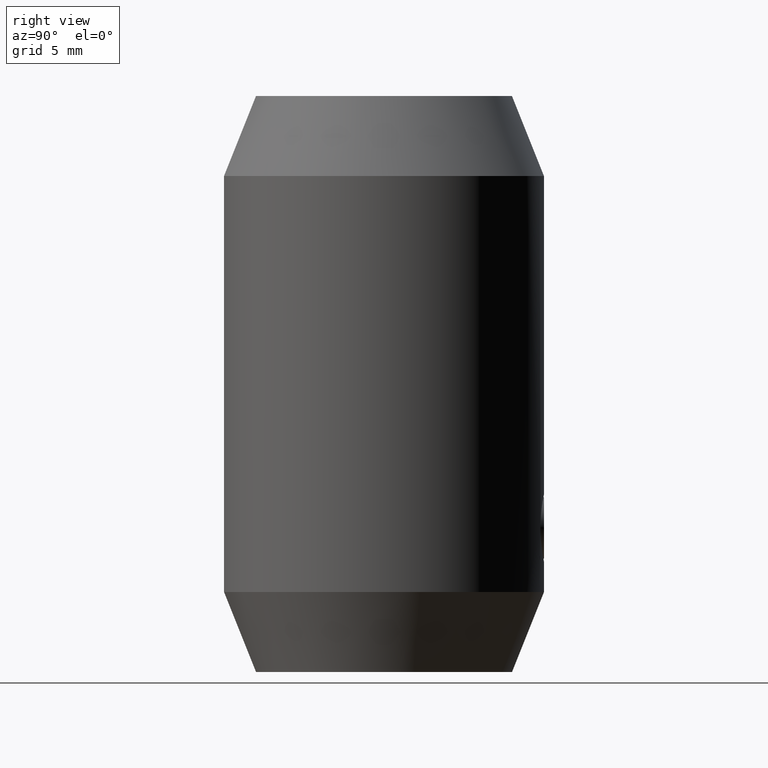
[diagram: clean part render]
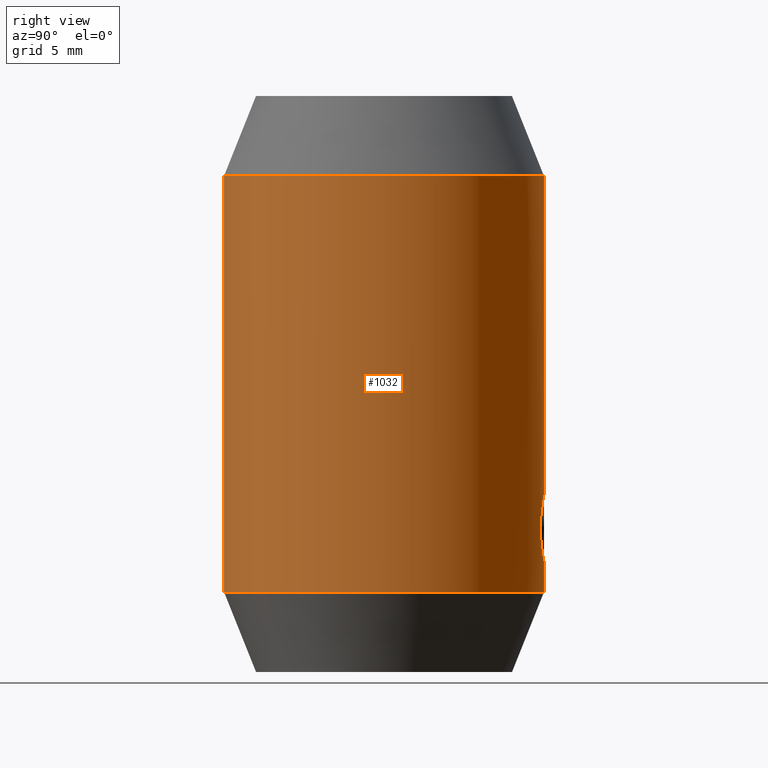
[diagram: same view with one face highlighted and labeled with its STEP entity id]
A machine part, right view. The second image highlights one B-rep face of the part: STEP entity #1032.
In plain terms, the highlighted cylindrical surface (partial cylindrical patch) has radius 10 mm, axis along (0, -0, 1).
Its self-contained STEP definition (entity closure, byte-faithful):
#25 = CARTESIAN_POINT ( 'NONE',  ( 1.886069022654248029, 9.820675200107668701, -9.933698955346818238 ) ) ;
#44 = VECTOR ( 'NONE', #3202, 1000.000000000000000 ) ;
#153 = CARTESIAN_POINT ( 'NONE',  ( 2.857019739783142212E-18, 10.00000000000000000, -6.900000000000001243 ) ) ;
#417 = DIRECTION ( 'NONE',  ( -0.000000000000000000, -2.139922160430262120E-32, 1.000000000000000000 ) ) ;
#565 = ORIENTED_EDGE ( 'NONE', *, *, #3037, .T. ) ;
#1032 = ADVANCED_FACE ( 'NONE', ( #8285 ), #10330, .T. ) ;
#1212 = VECTOR ( 'NONE', #8166, 1000.000000000000000 ) ;
#1372 = CIRCLE ( 'NONE', #3712, 10.00000000000000178 ) ;
#1441 = VERTEX_POINT ( 'NONE', #1941 ) ;
#1702 = AXIS2_PLACEMENT_3D ( 'NONE', #4312, #10938, #14352 ) ;
#1941 = CARTESIAN_POINT ( 'NONE',  ( 1.224647221750614481E-15, 10.00000000000000000, -11.09999999999999787 ) ) ;
#2036 = CARTESIAN_POINT ( 'NONE',  ( 1.887359528085516658, 9.820424885796265713, -8.069024827734512684 ) ) ;
#2293 = CARTESIAN_POINT ( 'NONE',  ( 2.099870464904528777, 9.777041681823456898, -9.278219139216016487 ) ) ;
#2780 = CARTESIAN_POINT ( 'NONE',  ( 1.224646799147353454E-15, 10.00000000000000178, -13.00000000000000178 ) ) ;
#2856 = ORIENTED_EDGE ( 'NONE', *, *, #9031, .F. ) ;
#2943 = EDGE_CURVE ( 'NONE', #8905, #8108, #9627, .T. ) ;
#3037 = EDGE_CURVE ( 'NONE', #1441, #4972, #9681, .T. ) ;
#3181 = CARTESIAN_POINT ( 'NONE',  ( 0.000000000000000000, -10.00000000000000178, -13.00000000000000178 ) ) ;
#3202 = DIRECTION ( 'NONE',  ( -0.000000000000000000, -2.139922160430262120E-32, 1.000000000000000000 ) ) ;
#3590 = EDGE_CURVE ( 'NONE', #6657, #1441, #9814, .T. ) ;
#3712 = AXIS2_PLACEMENT_3D ( 'NONE', #10391, #11525, #3734 ) ;
#3734 = DIRECTION ( 'NONE',  ( 0.000000000000000000, -1.000000000000000000, 0.000000000000000000 ) ) ;
#4274 = AXIS2_PLACEMENT_3D ( 'NONE', #13897, #6058, #4918 ) ;
#4312 = CARTESIAN_POINT ( 'NONE',  ( 0.000000000000000000, -2.781898808559340920E-31, 13.00000000000000000 ) ) ;
#4449 = CARTESIAN_POINT ( 'NONE',  ( 0.9307453044343513282, 9.957399126751534268, -10.88744288667146698 ) ) ;
#4539 = CARTESIAN_POINT ( 'NONE',  ( 1.387287519812233860, 9.903788256016399671, -10.58245622905389816 ) ) ;
#4741 = LINE ( 'NONE', #13675, #1212 ) ;
#4918 = DIRECTION ( 'NONE',  ( 0.000000000000000000, -1.000000000000000000, 0.000000000000000000 ) ) ;
#4947 = CARTESIAN_POINT ( 'NONE',  ( 1.224646799147353256E-15, 10.00000000000000000, 18.00000000000000000 ) ) ;
#4972 = VERTEX_POINT ( 'NONE', #153 ) ;
#5466 = CARTESIAN_POINT ( 'NONE',  ( 1.293047089259246496, 9.917965911646648536, -7.322954333223663070 ) ) ;
#5611 = CARTESIAN_POINT ( 'NONE',  ( 0.5473692627298688551, 9.985928670503444238, -6.967889140885696442 ) ) ;
#5635 = CARTESIAN_POINT ( 'NONE',  ( 1.224647221750614481E-15, 10.00000000000000000, -11.09999999999999787 ) ) ;
#5690 = CARTESIAN_POINT ( 'NONE',  ( 1.580960279274902902, 9.874722936770943704, -10.38899207155883531 ) ) ;
#6058 = DIRECTION ( 'NONE',  ( -0.000000000000000000, -2.139922160430262120E-32, 1.000000000000000000 ) ) ;
#6533 = CARTESIAN_POINT ( 'NONE',  ( 1.224646799147353256E-15, 10.00000000000000000, 18.00000000000000000 ) ) ;
#6583 = CARTESIAN_POINT ( 'NONE',  ( 1.670316449171411977, 9.859820038197737446, -7.719788501600800323 ) ) ;
#6623 = CARTESIAN_POINT ( 'NONE',  ( 1.822958913409086223, 9.832742701100269045, -7.948468107460126220 ) ) ;
#6657 = VERTEX_POINT ( 'NONE', #2780 ) ;
#6666 = ORIENTED_EDGE ( 'NONE', *, *, #3590, .T. ) ;
#6703 = CARTESIAN_POINT ( 'NONE',  ( 1.053408285335779349, 9.945026747411512602, -10.82187116342850075 ) ) ;
#6735 = CARTESIAN_POINT ( 'NONE',  ( 1.059534680940314111, 9.946938681563811002, -7.166363771335392485 ) ) ;
#6754 = CARTESIAN_POINT ( 'NONE',  ( 1.821420871010316578, 9.833025131130757046, -10.05409041296318229 ) ) ;
#6799 = CARTESIAN_POINT ( 'NONE',  ( 2.033100055609951440, 9.791182240394723735, -8.456549209934509648 ) ) ;
#6880 = ORIENTED_EDGE ( 'NONE', *, *, #11197, .T. ) ;
#7700 = CARTESIAN_POINT ( 'NONE',  ( 0.1391327100400020500, 10.00000000000000000, -6.900000000000001243 ) ) ;
#7826 = ORIENTED_EDGE ( 'NONE', *, *, #12356, .T. ) ;
#7860 = CARTESIAN_POINT ( 'NONE',  ( 2.045041805225629616, 9.789253035435455885, -9.551365944365478811 ) ) ;
#7901 = VECTOR ( 'NONE', #417, 1000.000000000000000 ) ;
#8108 = VERTEX_POINT ( 'NONE', #13412 ) ;
#8166 = DIRECTION ( 'NONE',  ( -0.000000000000000000, -2.139922160430262120E-32, 1.000000000000000000 ) ) ;
#8285 = FACE_OUTER_BOUND ( 'NONE', #10660, .T. ) ;
#8905 = VERTEX_POINT ( 'NONE', #10091 ) ;
#9031 = EDGE_CURVE ( 'NONE', #9285, #8905, #4741, .T. ) ;
#9285 = VERTEX_POINT ( 'NONE', #3181 ) ;
#9627 = CIRCLE ( 'NONE', #1702, 9.999999999999998224 ) ;
#9681 = B_SPLINE_CURVE_WITH_KNOTS ( 'NONE', 3,
 ( #5635, #12370, #12289, #4449, #6703, #14441, #4539, #5690, #13363, #6754, #25, #7860, #2293, #10080, #13418, #6799, #11820, #2036, #6623, #6583, #14373, #5466, #6735, #13260, #5611, #13348, #7700, #11106 ),
 .UNSPECIFIED., .F., .F.,
 ( 4, 2, 2, 2, 2, 2, 2, 2, 2, 2, 2, 2, 2, 4 ),
 ( 0.006583917366312152381, 0.007406692281731436234, 0.007818079739441079895, 0.008229467197150721822, 0.008640854654860365483, 0.009052242112570007410, 0.009875017027989298202, 0.01028640448569894186, 0.01069779194340858379, 0.01110917940111822745, 0.01152056685882786938, 0.01234334177424714629, 0.01275472923195678648, 0.01316611668966642668 ),
 .UNSPECIFIED. ) ;
#9814 = LINE ( 'NONE', #4947, #7901 ) ;
#10080 = CARTESIAN_POINT ( 'NONE',  ( 2.100064424928578699, 9.777000021249996564, -8.862359614028044064 ) ) ;
#10091 = CARTESIAN_POINT ( 'NONE',  ( 1.224646799147353059E-15, -9.999999999999998224, 13.00000000000000000 ) ) ;
#10330 = CYLINDRICAL_SURFACE ( 'NONE', #4274, 10.00000000000000000 ) ;
#10391 = CARTESIAN_POINT ( 'NONE',  ( 0.000000000000000000, 2.781898808559340920E-31, -13.00000000000000178 ) ) ;
#10660 = EDGE_LOOP ( 'NONE', ( #6880, #6666, #565, #7826, #11531, #2856 ) ) ;
#10938 = DIRECTION ( 'NONE',  ( -0.000000000000000000, -2.139922160430262120E-32, 1.000000000000000000 ) ) ;
#11106 = CARTESIAN_POINT ( 'NONE',  ( 2.857019739783142212E-18, 10.00000000000000000, -6.900000000000001243 ) ) ;
#11197 = EDGE_CURVE ( 'NONE', #9285, #6657, #1372, .T. ) ;
#11525 = DIRECTION ( 'NONE',  ( -0.000000000000000000, -2.139922160430262120E-32, 1.000000000000000000 ) ) ;
#11531 = ORIENTED_EDGE ( 'NONE', *, *, #2943, .F. ) ;
#11820 = CARTESIAN_POINT ( 'NONE',  ( 1.992485819201333497, 9.799636278255606570, -8.322621952000570644 ) ) ;
#12289 = CARTESIAN_POINT ( 'NONE',  ( 0.5515076366551702192, 9.988001606494973927, -11.04468804843289576 ) ) ;
#12356 = EDGE_CURVE ( 'NONE', #4972, #8108, #13300, .T. ) ;
#12370 = CARTESIAN_POINT ( 'NONE',  ( 0.2744674568845579254, 10.00000000000000000, -11.09999999999999432 ) ) ;
#13260 = CARTESIAN_POINT ( 'NONE',  ( 0.6806999570018724688, 9.977609848418813598, -7.008679719800376517 ) ) ;
#13300 = LINE ( 'NONE', #6533, #44 ) ;
#13348 = CARTESIAN_POINT ( 'NONE',  ( 0.2764203267573934752, 9.997098395290478834, -6.913692386902869025 ) ) ;
#13363 = CARTESIAN_POINT ( 'NONE',  ( 1.669424395786402560, 9.859968529643197144, -10.28128949687651783 ) ) ;
#13412 = CARTESIAN_POINT ( 'NONE',  ( 0.000000000000000000, 9.999999999999998224, 13.00000000000000000 ) ) ;
#13418 = CARTESIAN_POINT ( 'NONE',  ( 2.086536756483563515, 9.779934041934295053, -8.725775710071037139 ) ) ;
#13675 = CARTESIAN_POINT ( 'NONE',  ( 0.000000000000000000, -10.00000000000000000, 18.00000000000000000 ) ) ;
#13897 = CARTESIAN_POINT ( 'NONE',  ( 0.000000000000000000, -3.851859888774471706E-31, 18.00000000000000000 ) ) ;
#14352 = DIRECTION ( 'NONE',  ( 0.000000000000000000, -1.000000000000000000, 0.000000000000000000 ) ) ;
#14373 = CARTESIAN_POINT ( 'NONE',  ( 1.582275817962980557, 9.874507981960231717, -7.612550371450066855 ) ) ;
#14441 = CARTESIAN_POINT ( 'NONE',  ( 1.281843880461237539, 9.918170309511147309, -10.66905956091160768 ) ) ;